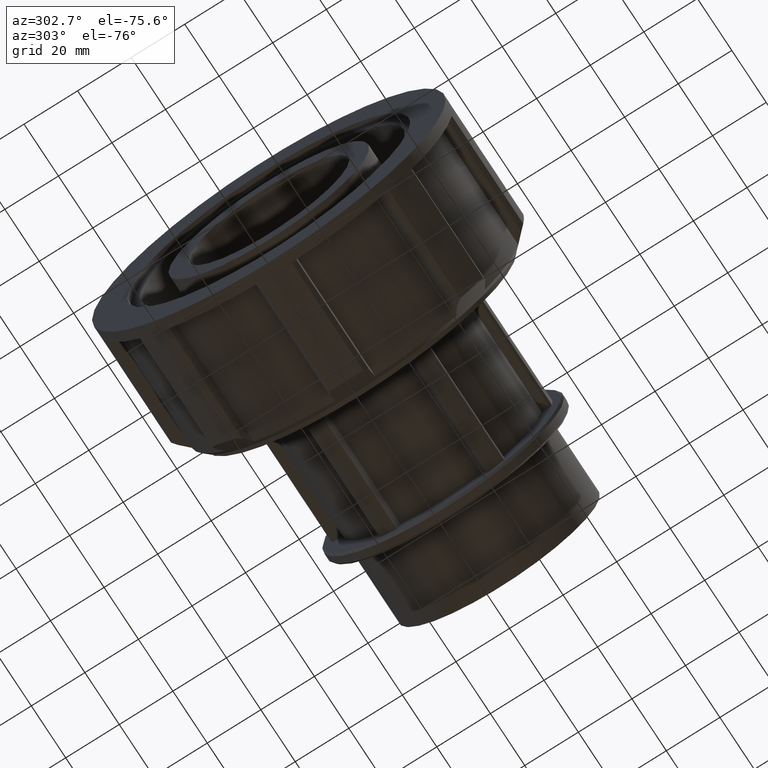
[diagram: clean part render]
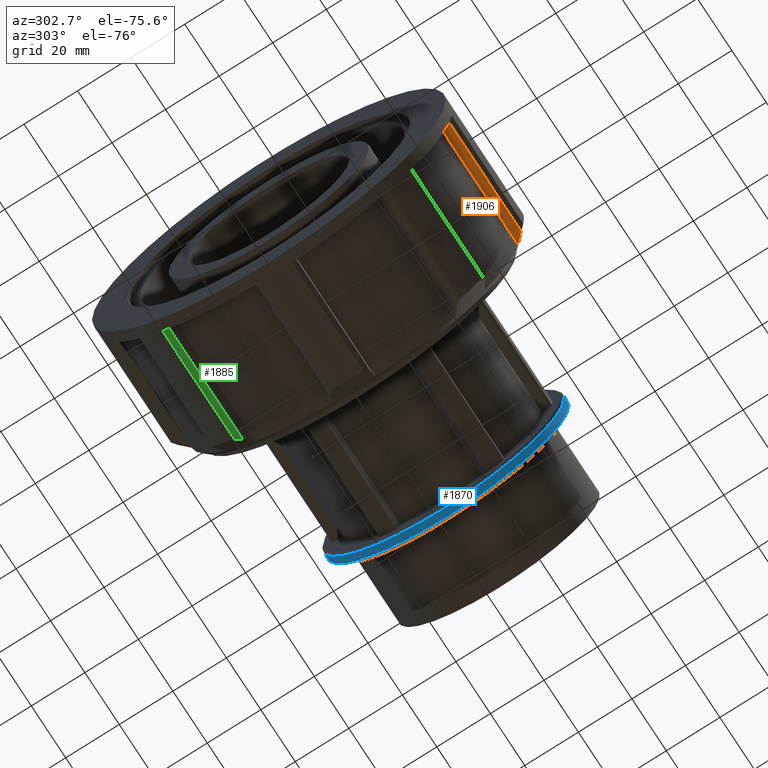
[diagram: same view with three faces highlighted in distinct colors, each labeled with its STEP entity id]
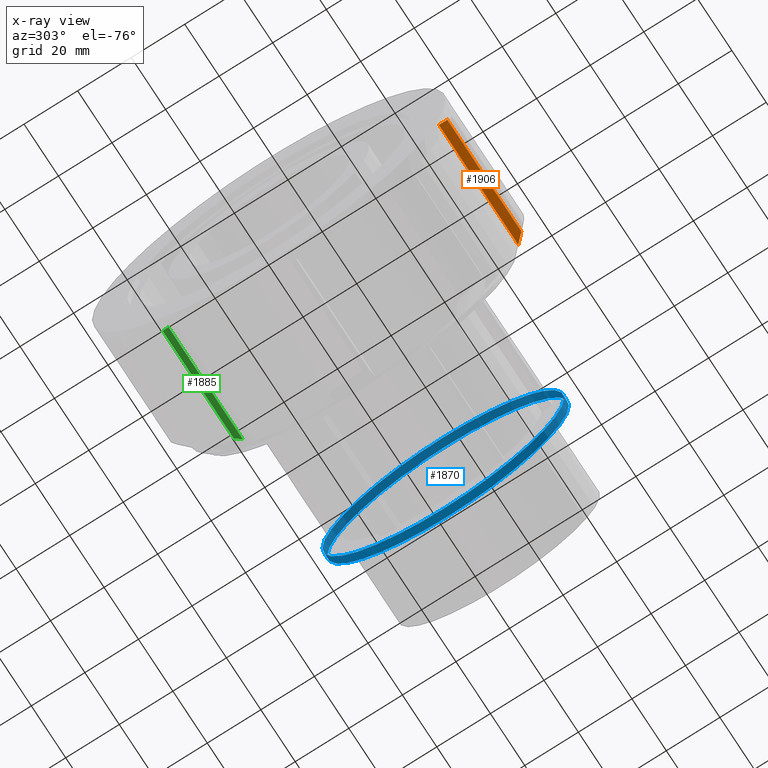
[diagram: x-ray of the same camera — body ghosted, the three highlighted faces saturated]
A machine part, auxiliary view with three faces highlighted in distinct colors.
The next image is the same camera in x-ray (body ghosted, the three faces saturated) — at least one of them is partly hidden behind the body in this view.
Their STEP definitions:

[orange] entity #1906 — the highlighted planar face has unit normal (0, 0, -1).
#29=(
BOUNDED_CURVE()
B_SPLINE_CURVE(2,(#2987,#2988,#2989),.UNSPECIFIED.,.F.,.F.)
B_SPLINE_CURVE_WITH_KNOTS((3,3),(5.90883325747331,6.47940327178975),
 .UNSPECIFIED.)
CURVE()
GEOMETRIC_REPRESENTATION_ITEM()
RATIONAL_B_SPLINE_CURVE((1.00938746695441,1.00662740270392,1.0032467714391))
REPRESENTATION_ITEM('')
);
#252=FACE_OUTER_BOUND('',#368,.T.);
#368=EDGE_LOOP('',(#1623,#1624,#1625,#1626));
#546=LINE('',#3159,#710);
#573=LINE('',#3214,#737);
#574=LINE('',#3215,#738);
#710=VECTOR('',#2482,43.0489443411917);
#737=VECTOR('',#2537,3.14889425088456);
#738=VECTOR('',#2538,46.17528);
#853=VERTEX_POINT('',#2982);
#854=VERTEX_POINT('',#2986);
#906=VERTEX_POINT('',#3157);
#920=VERTEX_POINT('',#3213);
#1080=EDGE_CURVE('',#853,#854,#29,.T.);
#1152=EDGE_CURVE('',#906,#853,#546,.T.);
#1179=EDGE_CURVE('',#920,#906,#573,.T.);
#1180=EDGE_CURVE('',#854,#920,#574,.T.);
#1623=ORIENTED_EDGE('',*,*,#1152,.F.);
#1624=ORIENTED_EDGE('',*,*,#1179,.F.);
#1625=ORIENTED_EDGE('',*,*,#1180,.F.);
#1626=ORIENTED_EDGE('',*,*,#1080,.F.);
#1815=PLANE('',#2072);
#1906=ADVANCED_FACE('',(#252),#1815,.T.);
#2072=AXIS2_PLACEMENT_3D('',#3212,#2535,#2536);
#2482=DIRECTION('',(1.,0.,0.));
#2535=DIRECTION('center_axis',(0.,4.44089209850063E-16,-1.));
#2536=DIRECTION('ref_axis',(0.,-1.,-4.44089209850063E-16));
#2537=DIRECTION('',(0.,-1.,-4.44089209850063E-16));
#2538=DIRECTION('',(-1.,0.,0.));
#2982=CARTESIAN_POINT('',(47.0689443411917,-64.0666918263058,-7.51840000000001));
#2986=CARTESIAN_POINT('',(50.19528,-60.9177975754213,-7.51840000000001));
#2987=CARTESIAN_POINT('Ctrl Pts',(47.0689443411917,-64.0666918263058,-7.51840000000001));
#2988=CARTESIAN_POINT('Ctrl Pts',(48.6714950589407,-62.4531439504511,-7.51840000000001));
#2989=CARTESIAN_POINT('Ctrl Pts',(50.19528,-60.9177975754213,-7.51840000000001));
#3157=CARTESIAN_POINT('',(4.02,-64.0666918263058,-7.51840000000001));
#3159=CARTESIAN_POINT('',(2.01000000000001,-64.0666918263058,-7.51840000000001));
#3212=CARTESIAN_POINT('Origin',(51.59,-57.591319323662,-7.51840000000001));
#3213=CARTESIAN_POINT('',(4.02,-60.9177975754213,-7.51840000000001));
#3214=CARTESIAN_POINT('',(4.02,1.89434033816902,-7.51839999999998));
#3215=CARTESIAN_POINT('',(27.805,-60.9177975754213,-7.51840000000001));

[blue] entity #1870 — the highlighted cylindrical surface (bore or boss wall) has radius 45.1104 mm, axis along (1, 0, 0).
#53=FACE_BOUND('',#327,.T.);
#99=CIRCLE('',#2004,45.1104);
#101=CIRCLE('',#2007,45.1104);
#164=CYLINDRICAL_SURFACE('',#2006,45.1104);
#216=FACE_OUTER_BOUND('',#326,.T.);
#326=EDGE_LOOP('',(#1378));
#327=EDGE_LOOP('',(#1379));
#820=VERTEX_POINT('',#2874);
#822=VERTEX_POINT('',#2879);
#1041=EDGE_CURVE('',#820,#820,#99,.T.);
#1043=EDGE_CURVE('',#822,#822,#101,.T.);
#1378=ORIENTED_EDGE('',*,*,#1043,.F.);
#1379=ORIENTED_EDGE('',*,*,#1041,.F.);
#1870=ADVANCED_FACE('',(#216,#53),#164,.T.);
#2004=AXIS2_PLACEMENT_3D('',#2875,#2325,#2326);
#2006=AXIS2_PLACEMENT_3D('',#2878,#2329,#2330);
#2007=AXIS2_PLACEMENT_3D('',#2880,#2331,#2332);
#2325=DIRECTION('center_axis',(1.,0.,0.));
#2326=DIRECTION('ref_axis',(0.,-1.,0.));
#2329=DIRECTION('center_axis',(1.,0.,0.));
#2330=DIRECTION('ref_axis',(0.,1.,0.));
#2331=DIRECTION('center_axis',(-1.,0.,0.));
#2332=DIRECTION('ref_axis',(0.,-1.,0.));
#2874=CARTESIAN_POINT('',(104.24816,45.1104,5.52443069682568E-15));
#2875=CARTESIAN_POINT('Origin',(104.24816,0.,0.));
#2878=CARTESIAN_POINT('Origin',(102.825,0.,0.));
#2879=CARTESIAN_POINT('',(101.40184,45.1104,-5.52443069682568E-15));
#2880=CARTESIAN_POINT('Origin',(101.40184,0.,0.));

[green] entity #1885 — the highlighted planar face has unit normal (0, -0.0514, -0.9987).
#39=(
BOUNDED_CURVE()
B_SPLINE_CURVE(2,(#3037,#3038,#3039),.UNSPECIFIED.,.F.,.F.)
B_SPLINE_CURVE_WITH_KNOTS((3,3),(0.,0.254882314161002),.UNSPECIFIED.)
CURVE()
GEOMETRIC_REPRESENTATION_ITEM()
RATIONAL_B_SPLINE_CURVE((1.,1.00064397529076,1.00099524152307))
REPRESENTATION_ITEM('')
);
#231=FACE_OUTER_BOUND('',#347,.T.);
#347=EDGE_LOOP('',(#1539,#1540,#1541,#1542));
#513=LINE('',#3087,#677);
#531=LINE('',#3130,#695);
#532=LINE('',#3131,#696);
#677=VECTOR('',#2415,41.55528);
#695=VECTOR('',#2453,43.0489443411917);
#696=VECTOR('',#2454,2.23294242006895);
#868=VERTEX_POINT('',#3032);
#869=VERTEX_POINT('',#3036);
#884=VERTEX_POINT('',#3086);
#899=VERTEX_POINT('',#3129);
#1095=EDGE_CURVE('',#869,#868,#39,.T.);
#1113=EDGE_CURVE('',#884,#869,#513,.T.);
#1137=EDGE_CURVE('',#868,#899,#531,.T.);
#1138=EDGE_CURVE('',#899,#884,#532,.F.);
#1539=ORIENTED_EDGE('',*,*,#1095,.T.);
#1540=ORIENTED_EDGE('',*,*,#1137,.T.);
#1541=ORIENTED_EDGE('',*,*,#1138,.T.);
#1542=ORIENTED_EDGE('',*,*,#1113,.T.);
#1794=PLANE('',#2051);
#1885=ADVANCED_FACE('',(#231),#1794,.T.);
#2051=AXIS2_PLACEMENT_3D('',#3128,#2451,#2452);
#2415=DIRECTION('',(1.,0.,0.));
#2451=DIRECTION('center_axis',(0.,-0.0513629956768564,-0.998680050203817));
#2452=DIRECTION('ref_axis',(-1.,0.,0.));
#2453=DIRECTION('',(-1.,0.,0.));
#2454=DIRECTION('',(0.,-0.998680050203817,0.0513629956768564));
#3032=CARTESIAN_POINT('',(47.0689443411917,39.9856806148967,-50.6183038622425));
#3036=CARTESIAN_POINT('',(45.57528,42.2156756630733,-50.7329944741112));
#3037=CARTESIAN_POINT('Ctrl Pts',(45.57528,42.2156756630733,-50.7329944741112));
#3038=CARTESIAN_POINT('Ctrl Pts',(46.3412148134912,41.0879168271771,-50.6749928426569));
#3039=CARTESIAN_POINT('Ctrl Pts',(47.0689443411917,39.9856806148967,-50.6183038622425));
#3086=CARTESIAN_POINT('',(4.02,42.2156756630733,-50.7329944741112));
#3087=CARTESIAN_POINT('',(2.01000000000001,42.2156756630733,-50.7329944741112));
#3128=CARTESIAN_POINT('Origin',(2.01000000000001,41.100678138985,-50.6756491681769));
#3129=CARTESIAN_POINT('',(4.02,39.9856806148967,-50.6183038622425));
#3130=CARTESIAN_POINT('',(2.01000000000001,39.9856806148967,-50.6183038622425));
#3131=CARTESIAN_POINT('',(4.02,49.913880291905,-51.1289199269022));